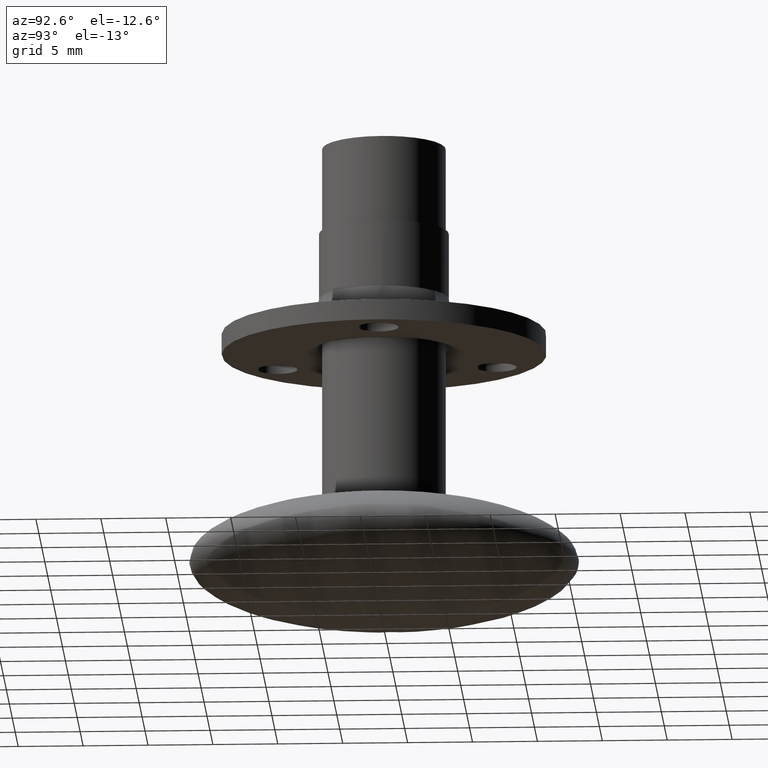
[diagram: clean part render]
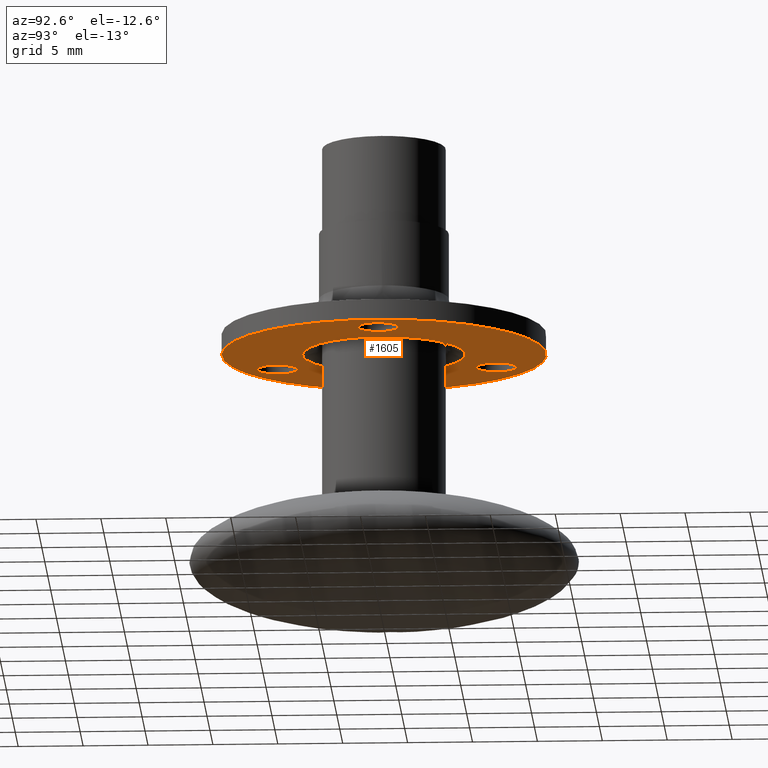
[diagram: same view with one face highlighted and labeled with its STEP entity id]
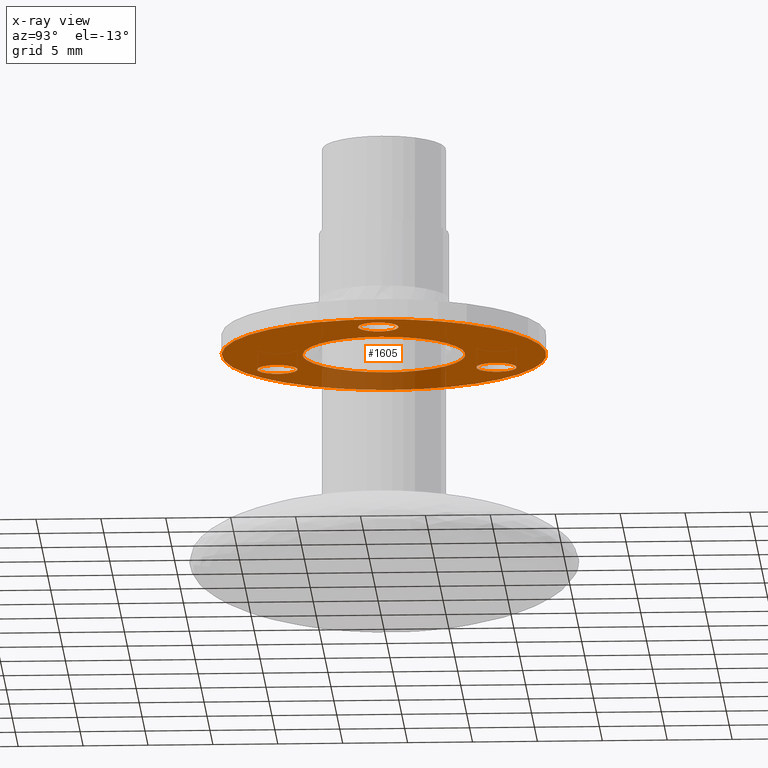
[diagram: x-ray of the same camera — body ghosted, the highlighted face saturated]
A machine part, auxiliary view. The second image highlights one B-rep face of the part: STEP entity #1605.
The next image is the same camera in x-ray: the body ghosted, the highlighted face saturated — about 18% of this face is hidden behind the body in this view.
In plain terms, the highlighted face is a freeform B-spline surface patch.
Its self-contained STEP definition (entity closure, byte-faithful):
#79=CARTESIAN_POINT('',(-4.996611598465421,6.898525132720639,-16.184758999999950));
#80=VERTEX_POINT('',#79);
#86=CARTESIAN_POINT('',(-6.425000000000000,8.443747000000119,-16.184758999999950));
#87=VERTEX_POINT('',#86);
#88=CARTESIAN_POINT('',(-6.425000000000000,8.443747000000119,-16.184758999999950));
#89=CARTESIAN_POINT('',(-6.424999999999998,7.010941738092222,-16.184758999999943));
#90=CARTESIAN_POINT('',(-4.996611598465421,6.898525132720639,-16.184758999999950));
#98=(BOUNDED_CURVE()B_SPLINE_CURVE(2,(#88,#89,#90),.UNSPECIFIED.,.F.,.U.)B_SPLINE_CURVE_WITH_KNOTS((3,3),(0.0,0.236331300613406),.UNSPECIFIED.)CURVE()GEOMETRIC_REPRESENTATION_ITEM()RATIONAL_B_SPLINE_CURVE((1.0,0.723120658627880,0.969723356131410))REPRESENTATION_ITEM(''));
#99=EDGE_CURVE('',#87,#80,#98,.T.);
#101=CARTESIAN_POINT('',(-4.753388401534580,9.988968867279599,-16.184758999999950));
#102=VERTEX_POINT('',#101);
#103=CARTESIAN_POINT('',(-4.753388401534580,9.988968867279599,-16.184758999999950));
#104=CARTESIAN_POINT('',(-4.814100334050449,9.993747000000118,-16.184758999999946));
#105=CARTESIAN_POINT('',(-4.875000000000000,9.993747000000118,-16.184758999999950));
#106=CARTESIAN_POINT('',(-6.424999999999999,9.993747000000118,-16.184758999999950));
#107=CARTESIAN_POINT('',(-6.425000000000000,8.443747000000119,-16.184758999999950));
#115=(BOUNDED_CURVE()B_SPLINE_CURVE(2,(#103,#104,#105,#106,#107),.UNSPECIFIED.,.F.,.U.)B_SPLINE_CURVE_WITH_KNOTS((3,2,3),(0.736331300613406,0.750000000000000,1.0),.UNSPECIFIED.)CURVE()GEOMETRIC_REPRESENTATION_ITEM()RATIONAL_B_SPLINE_CURVE((0.969723356131410,0.983986122558668,1.0,0.707106781186547,1.0))REPRESENTATION_ITEM(''));
#116=EDGE_CURVE('',#102,#87,#115,.T.);
#192=CARTESIAN_POINT('',(-3.325000000000000,8.443747000000119,-16.184758999999950));
#193=VERTEX_POINT('',#192);
#194=CARTESIAN_POINT('',(-3.325000000000000,8.443747000000119,-16.184758999999950));
#195=CARTESIAN_POINT('',(-3.325000000000000,9.876552261908016,-16.184758999999950));
#196=CARTESIAN_POINT('',(-4.753388401534580,9.988968867279599,-16.184758999999943));
#204=(BOUNDED_CURVE()B_SPLINE_CURVE(2,(#194,#195,#196),.UNSPECIFIED.,.F.,.U.)B_SPLINE_CURVE_WITH_KNOTS((3,3),(0.500000000000000,0.736331300613406),.UNSPECIFIED.)CURVE()GEOMETRIC_REPRESENTATION_ITEM()RATIONAL_B_SPLINE_CURVE((1.0,0.723120658627879,0.969723356131411))REPRESENTATION_ITEM(''));
#205=EDGE_CURVE('',#193,#102,#204,.T.);
#207=CARTESIAN_POINT('',(-4.996611598465421,6.898525132720639,-16.184758999999950));
#208=CARTESIAN_POINT('',(-4.935899665949552,6.893747000000119,-16.184758999999946));
#209=CARTESIAN_POINT('',(-4.875000000000000,6.893747000000119,-16.184758999999950));
#210=CARTESIAN_POINT('',(-3.325000000000001,6.893747000000120,-16.184758999999950));
#211=CARTESIAN_POINT('',(-3.325000000000000,8.443747000000119,-16.184758999999950));
#219=(BOUNDED_CURVE()B_SPLINE_CURVE(2,(#207,#208,#209,#210,#211),.UNSPECIFIED.,.F.,.U.)B_SPLINE_CURVE_WITH_KNOTS((3,2,3),(0.236331300613406,0.250000000000000,0.500000000000000),.UNSPECIFIED.)CURVE()GEOMETRIC_REPRESENTATION_ITEM()RATIONAL_B_SPLINE_CURVE((0.969723356131410,0.983986122558668,1.0,0.707106781186547,1.0))REPRESENTATION_ITEM(''));
#220=EDGE_CURVE('',#80,#193,#219,.T.);
#261=CARTESIAN_POINT('',(9.628388401534579,-1.545221867279480,-16.184758999999950));
#262=VERTEX_POINT('',#261);
#268=CARTESIAN_POINT('',(8.200000000000001,0.0,-16.184758999999950));
#269=VERTEX_POINT('',#268);
#270=CARTESIAN_POINT('',(8.200000000000001,0.0,-16.184758999999950));
#271=CARTESIAN_POINT('',(8.200000000000001,-1.432805261907897,-16.184758999999943));
#272=CARTESIAN_POINT('',(9.628388401534579,-1.545221867279481,-16.184758999999950));
#280=(BOUNDED_CURVE()B_SPLINE_CURVE(2,(#270,#271,#272),.UNSPECIFIED.,.F.,.U.)B_SPLINE_CURVE_WITH_KNOTS((3,3),(0.0,0.236331300613406),.UNSPECIFIED.)CURVE()GEOMETRIC_REPRESENTATION_ITEM()RATIONAL_B_SPLINE_CURVE((1.0,0.723120658627880,0.969723356131410))REPRESENTATION_ITEM(''));
#281=EDGE_CURVE('',#269,#262,#280,.T.);
#283=CARTESIAN_POINT('',(9.871611598465421,1.545221867279480,-16.184758999999950));
#284=VERTEX_POINT('',#283);
#285=CARTESIAN_POINT('',(9.871611598465421,1.545221867279480,-16.184758999999946));
#286=CARTESIAN_POINT('',(9.810899665949556,1.550000000000000,-16.184758999999950));
#287=CARTESIAN_POINT('',(9.750000000000000,1.550000000000000,-16.184758999999950));
#288=CARTESIAN_POINT('',(8.200000000000001,1.550000000000001,-16.184758999999950));
#289=CARTESIAN_POINT('',(8.200000000000001,0.0,-16.184758999999950));
#297=(BOUNDED_CURVE()B_SPLINE_CURVE(2,(#285,#286,#287,#288,#289),.UNSPECIFIED.,.F.,.U.)B_SPLINE_CURVE_WITH_KNOTS((3,2,3),(0.736331300613406,0.750000000000000,1.0),.UNSPECIFIED.)CURVE()GEOMETRIC_REPRESENTATION_ITEM()RATIONAL_B_SPLINE_CURVE((0.969723356131410,0.983986122558668,1.0,0.707106781186547,1.0))REPRESENTATION_ITEM(''));
#298=EDGE_CURVE('',#284,#269,#297,.T.);
#374=CARTESIAN_POINT('',(11.300000000000001,0.0,-16.184758999999950));
#375=VERTEX_POINT('',#374);
#376=CARTESIAN_POINT('',(11.300000000000001,0.0,-16.184758999999950));
#377=CARTESIAN_POINT('',(11.299999999999999,1.432805261907898,-16.184758999999950));
#378=CARTESIAN_POINT('',(9.871611598465421,1.545221867279480,-16.184758999999943));
#386=(BOUNDED_CURVE()B_SPLINE_CURVE(2,(#376,#377,#378),.UNSPECIFIED.,.F.,.U.)B_SPLINE_CURVE_WITH_KNOTS((3,3),(0.500000000000000,0.736331300613406),.UNSPECIFIED.)CURVE()GEOMETRIC_REPRESENTATION_ITEM()RATIONAL_B_SPLINE_CURVE((1.0,0.723120658627879,0.969723356131411))REPRESENTATION_ITEM(''));
#387=EDGE_CURVE('',#375,#284,#386,.T.);
#389=CARTESIAN_POINT('',(9.628388401534579,-1.545221867279480,-16.184758999999953));
#390=CARTESIAN_POINT('',(9.689100334050446,-1.550000000000000,-16.184758999999946));
#391=CARTESIAN_POINT('',(9.750000000000000,-1.550000000000000,-16.184758999999950));
#392=CARTESIAN_POINT('',(11.300000000000001,-1.550000000000001,-16.184758999999950));
#393=CARTESIAN_POINT('',(11.300000000000001,0.0,-16.184758999999950));
#401=(BOUNDED_CURVE()B_SPLINE_CURVE(2,(#389,#390,#391,#392,#393),.UNSPECIFIED.,.F.,.U.)B_SPLINE_CURVE_WITH_KNOTS((3,2,3),(0.236331300613406,0.250000000000000,0.500000000000000),.UNSPECIFIED.)CURVE()GEOMETRIC_REPRESENTATION_ITEM()RATIONAL_B_SPLINE_CURVE((0.969723356131410,0.983986122558668,1.0,0.707106781186547,1.0))REPRESENTATION_ITEM(''));
#402=EDGE_CURVE('',#262,#375,#401,.T.);
#443=CARTESIAN_POINT('',(-4.996611598465421,-9.988969867279479,-16.184758999999950));
#444=VERTEX_POINT('',#443);
#450=CARTESIAN_POINT('',(-6.425000000000000,-8.443747999999999,-16.184758999999950));
#451=VERTEX_POINT('',#450);
#452=CARTESIAN_POINT('',(-6.425000000000000,-8.443747999999999,-16.184758999999950));
#453=CARTESIAN_POINT('',(-6.425000000000000,-9.876553261907896,-16.184758999999946));
#454=CARTESIAN_POINT('',(-4.996611598465421,-9.988969867279479,-16.184758999999946));
#462=(BOUNDED_CURVE()B_SPLINE_CURVE(2,(#452,#453,#454),.UNSPECIFIED.,.F.,.U.)B_SPLINE_CURVE_WITH_KNOTS((3,3),(0.0,0.236331300613406),.UNSPECIFIED.)CURVE()GEOMETRIC_REPRESENTATION_ITEM()RATIONAL_B_SPLINE_CURVE((1.0,0.723120658627879,0.969723356131411))REPRESENTATION_ITEM(''));
#463=EDGE_CURVE('',#451,#444,#462,.T.);
#465=CARTESIAN_POINT('',(-4.753388401534581,-6.898526132720519,-16.184758999999950));
#466=VERTEX_POINT('',#465);
#467=CARTESIAN_POINT('',(-4.753388401534581,-6.898526132720519,-16.184758999999953));
#468=CARTESIAN_POINT('',(-4.814100334050447,-6.893747999999998,-16.184758999999943));
#469=CARTESIAN_POINT('',(-4.875000000000000,-6.893747999999999,-16.184758999999950));
#470=CARTESIAN_POINT('',(-6.424999999999999,-6.893748000000000,-16.184758999999950));
#471=CARTESIAN_POINT('',(-6.425000000000000,-8.443747999999999,-16.184758999999950));
#479=(BOUNDED_CURVE()B_SPLINE_CURVE(2,(#467,#468,#469,#470,#471),.UNSPECIFIED.,.F.,.U.)B_SPLINE_CURVE_WITH_KNOTS((3,2,3),(0.736331300613406,0.750000000000000,1.0),.UNSPECIFIED.)CURVE()GEOMETRIC_REPRESENTATION_ITEM()RATIONAL_B_SPLINE_CURVE((0.969723356131411,0.983986122558668,1.0,0.707106781186547,1.0))REPRESENTATION_ITEM(''));
#480=EDGE_CURVE('',#466,#451,#479,.T.);
#556=CARTESIAN_POINT('',(-3.325000000000000,-8.443747999999999,-16.184758999999950));
#557=VERTEX_POINT('',#556);
#558=CARTESIAN_POINT('',(-3.325000000000000,-8.443747999999999,-16.184758999999950));
#559=CARTESIAN_POINT('',(-3.325000000000000,-7.010942738092102,-16.184758999999950));
#560=CARTESIAN_POINT('',(-4.753388401534581,-6.898526132720519,-16.184758999999953));
#568=(BOUNDED_CURVE()B_SPLINE_CURVE(2,(#558,#559,#560),.UNSPECIFIED.,.F.,.U.)B_SPLINE_CURVE_WITH_KNOTS((3,3),(0.500000000000000,0.736331300613406),.UNSPECIFIED.)CURVE()GEOMETRIC_REPRESENTATION_ITEM()RATIONAL_B_SPLINE_CURVE((1.0,0.723120658627879,0.969723356131411))REPRESENTATION_ITEM(''));
#569=EDGE_CURVE('',#557,#466,#568,.T.);
#571=CARTESIAN_POINT('',(-4.996611598465421,-9.988969867279479,-16.184758999999950));
#572=CARTESIAN_POINT('',(-4.935899665949553,-9.993748000000000,-16.184758999999946));
#573=CARTESIAN_POINT('',(-4.875000000000000,-9.993747999999998,-16.184758999999950));
#574=CARTESIAN_POINT('',(-3.325000000000001,-9.993747999999998,-16.184758999999950));
#575=CARTESIAN_POINT('',(-3.325000000000000,-8.443747999999999,-16.184758999999950));
#583=(BOUNDED_CURVE()B_SPLINE_CURVE(2,(#571,#572,#573,#574,#575),.UNSPECIFIED.,.F.,.U.)B_SPLINE_CURVE_WITH_KNOTS((3,2,3),(0.236331300613406,0.250000000000000,0.500000000000000),.UNSPECIFIED.)CURVE()GEOMETRIC_REPRESENTATION_ITEM()RATIONAL_B_SPLINE_CURVE((0.969723356131410,0.983986122558668,1.0,0.707106781186547,1.0))REPRESENTATION_ITEM(''));
#584=EDGE_CURVE('',#444,#557,#583,.T.);
#646=CARTESIAN_POINT('',(0.763103298007722,-12.476685191049659,-16.184758999999900));
#647=VERTEX_POINT('',#646);
#653=CARTESIAN_POINT('',(12.500000000000000,0.0,-16.184758999999900));
#654=VERTEX_POINT('',#653);
#655=CARTESIAN_POINT('',(12.500000000000000,0.0,-16.184758999999900));
#656=CARTESIAN_POINT('',(12.500000000000000,-11.758829090289387,-16.184758999999900));
#657=CARTESIAN_POINT('',(0.763103298007722,-12.476685191049659,-16.184758999999904));
#665=(BOUNDED_CURVE()B_SPLINE_CURVE(2,(#655,#656,#657),.UNSPECIFIED.,.F.,.U.)B_SPLINE_CURVE_WITH_KNOTS((3,3),(0.500000000000000,0.739333009901020),.UNSPECIFIED.)CURVE()GEOMETRIC_REPRESENTATION_ITEM()RATIONAL_B_SPLINE_CURVE((1.0,0.719603937447114,0.976072143815642))REPRESENTATION_ITEM(''));
#666=EDGE_CURVE('',#654,#647,#665,.T.);
#668=CARTESIAN_POINT('',(-1.475427807259749,12.412619094516860,-16.184758999999900));
#669=VERTEX_POINT('',#668);
#670=CARTESIAN_POINT('',(-1.475427807259750,12.412619094516867,-16.184758999999904));
#671=CARTESIAN_POINT('',(-0.740301368367620,12.499999999999996,-16.184758999999900));
#672=CARTESIAN_POINT('',(0.0,12.500000000000000,-16.184758999999900));
#673=CARTESIAN_POINT('',(12.499999999999998,12.499999999999998,-16.184758999999897));
#674=CARTESIAN_POINT('',(12.500000000000000,0.0,-16.184758999999900));
#682=(BOUNDED_CURVE()B_SPLINE_CURVE(2,(#670,#671,#672,#673,#674),.UNSPECIFIED.,.F.,.U.)B_SPLINE_CURVE_WITH_KNOTS((3,2,3),(0.229562476945366,0.250000000000000,0.500000000000000),.UNSPECIFIED.)CURVE()GEOMETRIC_REPRESENTATION_ITEM()RATIONAL_B_SPLINE_CURVE((0.956026760910281,0.976055952351816,1.0,0.707106781186547,1.0))REPRESENTATION_ITEM(''));
#683=EDGE_CURVE('',#669,#654,#682,.T.);
#727=CARTESIAN_POINT('',(-12.500000000000000,0.0,-16.184758999999900));
#728=VERTEX_POINT('',#727);
#729=CARTESIAN_POINT('',(-12.500000000000000,0.0,-16.184758999999900));
#730=CARTESIAN_POINT('',(-12.499999999999998,11.102181801283853,-16.184758999999897));
#731=CARTESIAN_POINT('',(-1.475427807259750,12.412619094516867,-16.184758999999904));
#739=(BOUNDED_CURVE()B_SPLINE_CURVE(2,(#729,#730,#731),.UNSPECIFIED.,.F.,.U.)B_SPLINE_CURVE_WITH_KNOTS((3,3),(0.0,0.229562476945366),.UNSPECIFIED.)CURVE()GEOMETRIC_REPRESENTATION_ITEM()RATIONAL_B_SPLINE_CURVE((1.0,0.731050828834731,0.956026760910281))REPRESENTATION_ITEM(''));
#740=EDGE_CURVE('',#728,#669,#739,.T.);
#742=CARTESIAN_POINT('',(0.763103298007722,-12.476685191049659,-16.184758999999904));
#743=CARTESIAN_POINT('',(0.381907813312029,-12.499999999999998,-16.184758999999904));
#744=CARTESIAN_POINT('',(0.0,-12.500000000000000,-16.184758999999900));
#745=CARTESIAN_POINT('',(-12.499999999999998,-12.499999999999998,-16.184758999999897));
#746=CARTESIAN_POINT('',(-12.500000000000000,0.0,-16.184758999999900));
#754=(BOUNDED_CURVE()B_SPLINE_CURVE(2,(#742,#743,#744,#745,#746),.UNSPECIFIED.,.F.,.U.)B_SPLINE_CURVE_WITH_KNOTS((3,2,3),(0.739333009901020,0.750000000000000,1.0),.UNSPECIFIED.)CURVE()GEOMETRIC_REPRESENTATION_ITEM()RATIONAL_B_SPLINE_CURVE((0.976072143815642,0.987502843739434,1.0,0.707106781186547,1.0))REPRESENTATION_ITEM(''));
#755=EDGE_CURVE('',#647,#728,#754,.T.);
#1246=CARTESIAN_POINT('',(0.157377222720078,-6.260522235386606,-16.184758999999900));
#1247=VERTEX_POINT('',#1246);
#1261=CARTESIAN_POINT('',(-6.262500000000000,0.0,-16.184758999999900));
#1262=VERTEX_POINT('',#1261);
#1263=CARTESIAN_POINT('',(-6.262500000000000,0.0,-16.184758999999900));
#1264=CARTESIAN_POINT('',(-6.262500000000002,-6.262500000000002,-16.184758999999904));
#1265=CARTESIAN_POINT('',(0.0,-6.262500000000000,-16.184758999999900));
#1266=CARTESIAN_POINT('',(0.078701038678841,-6.262500000000000,-16.184758999999904));
#1267=CARTESIAN_POINT('',(0.157377222720078,-6.260522235386606,-16.184758999999897));
#1275=(BOUNDED_CURVE()B_SPLINE_CURVE(2,(#1263,#1264,#1265,#1266,#1267),.UNSPECIFIED.,.F.,.U.)B_SPLINE_CURVE_WITH_KNOTS((3,2,3),(0.0,0.250000000000000,0.254420108230538),.UNSPECIFIED.)CURVE()GEOMETRIC_REPRESENTATION_ITEM()RATIONAL_B_SPLINE_CURVE((1.0,0.707106781186548,1.0,0.994821521091416,0.989826157680796))REPRESENTATION_ITEM(''));
#1276=EDGE_CURVE('',#1262,#1247,#1275,.T.);
#1278=CARTESIAN_POINT('',(6.260522234910463,0.157377222843210,-16.184758999999900));
#1279=VERTEX_POINT('',#1278);
#1280=CARTESIAN_POINT('',(6.260522234910463,0.157377222843210,-16.184758999999897));
#1281=CARTESIAN_POINT('',(6.107051449305772,6.262500000000002,-16.184758999999904));
#1282=CARTESIAN_POINT('',(0.0,6.262500000000000,-16.184758999999900));
#1283=CARTESIAN_POINT('',(-6.262500000000002,6.262500000000002,-16.184758999999904));
#1284=CARTESIAN_POINT('',(-6.262500000000000,0.0,-16.184758999999900));
#1292=(BOUNDED_CURVE()B_SPLINE_CURVE(2,(#1280,#1281,#1282,#1283,#1284),.UNSPECIFIED.,.F.,.U.)B_SPLINE_CURVE_WITH_KNOTS((3,2,3),(0.504420108238085,0.750000000000000,1.0),.UNSPECIFIED.)CURVE()GEOMETRIC_REPRESENTATION_ITEM()RATIONAL_B_SPLINE_CURVE((0.989826157663737,0.712285260103974,1.0,0.707106781186548,1.0))REPRESENTATION_ITEM(''));
#1293=EDGE_CURVE('',#1279,#1262,#1292,.T.);
#1334=CARTESIAN_POINT('',(6.262500000000000,0.0,-16.184758999999900));
#1335=VERTEX_POINT('',#1334);
#1336=CARTESIAN_POINT('',(6.262500000000000,0.0,-16.184758999999900));
#1337=CARTESIAN_POINT('',(6.262499999999999,0.078701038813937,-16.184758999999897));
#1338=CARTESIAN_POINT('',(6.260522234910463,0.157377222843210,-16.184758999999904));
#1346=(BOUNDED_CURVE()B_SPLINE_CURVE(2,(#1336,#1337,#1338),.UNSPECIFIED.,.F.,.U.)B_SPLINE_CURVE_WITH_KNOTS((3,3),(0.500000000000000,0.504420108238086),.UNSPECIFIED.)CURVE()GEOMETRIC_REPRESENTATION_ITEM()RATIONAL_B_SPLINE_CURVE((1.0,0.994821521082573,0.989826157663735))REPRESENTATION_ITEM(''));
#1347=EDGE_CURVE('',#1335,#1279,#1346,.T.);
#1349=CARTESIAN_POINT('',(0.157377222720078,-6.260522235386606,-16.184758999999897));
#1350=CARTESIAN_POINT('',(6.262500000000004,-6.107051449569269,-16.184758999999904));
#1351=CARTESIAN_POINT('',(6.262500000000000,0.0,-16.184758999999900));
#1359=(BOUNDED_CURVE()B_SPLINE_CURVE(2,(#1349,#1350,#1351),.UNSPECIFIED.,.F.,.U.)B_SPLINE_CURVE_WITH_KNOTS((3,3),(0.254420108230538,0.500000000000000),.UNSPECIFIED.)CURVE()GEOMETRIC_REPRESENTATION_ITEM()RATIONAL_B_SPLINE_CURVE((0.989826157680796,0.712285260095131,1.0))REPRESENTATION_ITEM(''));
#1360=EDGE_CURVE('',#1247,#1335,#1359,.T.);
#1570=CARTESIAN_POINT('',(13.748749951545150,-13.748446416702111,-16.184758999999900));
#1571=CARTESIAN_POINT('',(-13.748750622097401,-13.748446416702111,-16.184758999999900));
#1572=CARTESIAN_POINT('',(13.748749951545150,13.748522636141621,-16.184758999999900));
#1573=CARTESIAN_POINT('',(-13.748750622097401,13.748522636141621,-16.184758999999900));
#1574=B_SPLINE_SURFACE_WITH_KNOTS('',1,1,((#1570,#1572),(#1571,#1573)),.UNSPECIFIED.,.F.,.F.,.U.,(2,2),(2,2),(0.0,27.497500573642551),(0.0,27.496969052843731),.UNSPECIFIED.);
#1575=ORIENTED_EDGE('',*,*,#740,.T.);
#1576=ORIENTED_EDGE('',*,*,#683,.T.);
#1577=ORIENTED_EDGE('',*,*,#666,.T.);
#1578=ORIENTED_EDGE('',*,*,#755,.T.);
#1579=EDGE_LOOP('',(#1575,#1576,#1577,#1578));
#1580=FACE_OUTER_BOUND('',#1579,.T.);
#1581=ORIENTED_EDGE('',*,*,#1347,.T.);
#1582=ORIENTED_EDGE('',*,*,#1293,.T.);
#1583=ORIENTED_EDGE('',*,*,#1276,.T.);
#1584=ORIENTED_EDGE('',*,*,#1360,.T.);
#1585=EDGE_LOOP('',(#1581,#1582,#1583,#1584));
#1586=FACE_BOUND('',#1585,.T.);
#1587=ORIENTED_EDGE('',*,*,#569,.T.);
#1588=ORIENTED_EDGE('',*,*,#480,.T.);
#1589=ORIENTED_EDGE('',*,*,#463,.T.);
#1590=ORIENTED_EDGE('',*,*,#584,.T.);
#1591=EDGE_LOOP('',(#1587,#1588,#1589,#1590));
#1592=FACE_BOUND('',#1591,.T.);
#1593=ORIENTED_EDGE('',*,*,#387,.T.);
#1594=ORIENTED_EDGE('',*,*,#298,.T.);
#1595=ORIENTED_EDGE('',*,*,#281,.T.);
#1596=ORIENTED_EDGE('',*,*,#402,.T.);
#1597=EDGE_LOOP('',(#1593,#1594,#1595,#1596));
#1598=FACE_BOUND('',#1597,.T.);
#1599=ORIENTED_EDGE('',*,*,#205,.T.);
#1600=ORIENTED_EDGE('',*,*,#116,.T.);
#1601=ORIENTED_EDGE('',*,*,#99,.T.);
#1602=ORIENTED_EDGE('',*,*,#220,.T.);
#1603=EDGE_LOOP('',(#1599,#1600,#1601,#1602));
#1604=FACE_BOUND('',#1603,.T.);
#1605=ADVANCED_FACE('',(#1580,#1586,#1592,#1598,#1604),#1574,.T.);